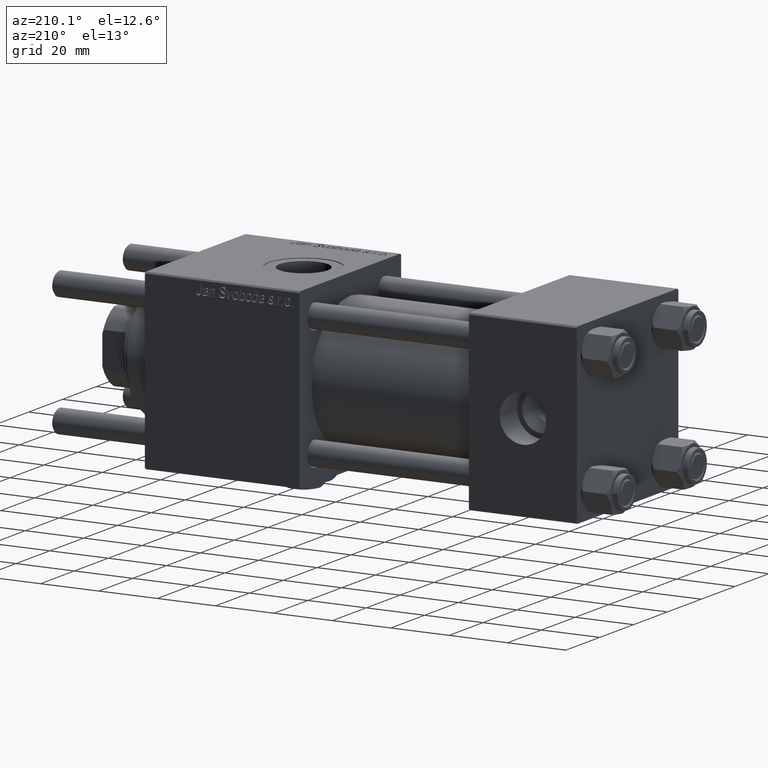
[diagram: clean part render]
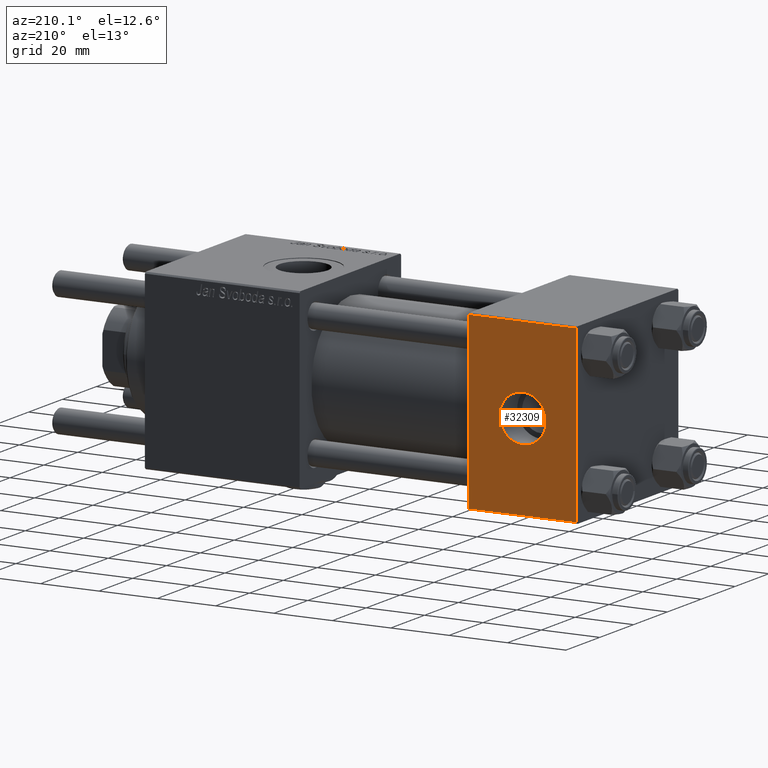
[diagram: same view with one face highlighted and labeled with its STEP entity id]
A machine part, auxiliary view. The second image highlights one B-rep face of the part: STEP entity #32309.
In plain terms, the highlighted planar face has unit normal (0, 1, 0).
Its self-contained STEP definition (entity closure, byte-faithful):
#1360 = EDGE_CURVE ( 'NONE', #17130, #56849, #24580, .T. ) ;
#2217 = CARTESIAN_POINT ( 'NONE',  ( 37.00000000000000000, 29.99999999999999289, -29.50000000000000000 ) ) ;
#3434 = VERTEX_POINT ( 'NONE', #12676 ) ;
#3611 = DIRECTION ( 'NONE',  ( -0.000000000000000000, 1.000000000000000000, 0.000000000000000000 ) ) ;
#3901 = CARTESIAN_POINT ( 'NONE',  ( 37.00000000000000000, 29.99999999999999289, 30.00000000000000000 ) ) ;
#5620 = AXIS2_PLACEMENT_3D ( 'NONE', #3901, #3611, #7777 ) ;
#6468 = CARTESIAN_POINT ( 'NONE',  ( 18.50000000000000000, 29.99999999999999289, 0.000000000000000000 ) ) ;
#7267 = DIRECTION ( 'NONE',  ( 0.000000000000000000, 1.000000000000000000, 0.000000000000000000 ) ) ;
#7273 = LINE ( 'NONE', #2217, #49965 ) ;
#7777 = DIRECTION ( 'NONE',  ( 0.000000000000000000, -0.000000000000000000, 1.000000000000000000 ) ) ;
#7893 = EDGE_CURVE ( 'NONE', #24672, #13046, #33667, .T. ) ;
#10013 = EDGE_CURVE ( 'NONE', #13046, #56849, #7273, .T. ) ;
#11060 = CARTESIAN_POINT ( 'NONE',  ( 37.00000000000000000, 29.99999999999999289, 30.00000000000000000 ) ) ;
#12458 = ORIENTED_EDGE ( 'NONE', *, *, #49278, .F. ) ;
#12676 = CARTESIAN_POINT ( 'NONE',  ( 18.50000000000000000, 29.99999999999999289, -8.000000000000001776 ) ) ;
#13046 = VERTEX_POINT ( 'NONE', #20766 ) ;
#14012 = CARTESIAN_POINT ( 'NONE',  ( 37.00000000000000000, 29.99999999999999289, 29.50000000000000000 ) ) ;
#14279 = AXIS2_PLACEMENT_3D ( 'NONE', #30469, #7267, #38218 ) ;
#17130 = VERTEX_POINT ( 'NONE', #27469 ) ;
#18965 = CIRCLE ( 'NONE', #49396, 8.000000000000001776 ) ;
#19747 = ORIENTED_EDGE ( 'NONE', *, *, #1360, .F. ) ;
#20161 = DIRECTION ( 'NONE',  ( 0.000000000000000000, 0.000000000000000000, 1.000000000000000000 ) ) ;
#20766 = CARTESIAN_POINT ( 'NONE',  ( 37.00000000000000000, 29.99999999999999289, -29.50000000000000000 ) ) ;
#22370 = ORIENTED_EDGE ( 'NONE', *, *, #10013, .T. ) ;
#22494 = LINE ( 'NONE', #56024, #23090 ) ;
#23090 = VECTOR ( 'NONE', #28629, 1000.000000000000000 ) ;
#24290 = DIRECTION ( 'NONE',  ( 0.000000000000000000, 0.000000000000000000, -1.000000000000000000 ) ) ;
#24580 = LINE ( 'NONE', #42130, #56253 ) ;
#24628 = DIRECTION ( 'NONE',  ( 0.000000000000000000, 1.000000000000000000, 0.000000000000000000 ) ) ;
#24672 = VERTEX_POINT ( 'NONE', #14012 ) ;
#24740 = EDGE_LOOP ( 'NONE', ( #26848, #22370, #19747, #52997 ) ) ;
#26848 = ORIENTED_EDGE ( 'NONE', *, *, #7893, .T. ) ;
#27469 = CARTESIAN_POINT ( 'NONE',  ( 0.000000000000000000, 29.99999999999999289, 29.50000000000000000 ) ) ;
#28629 = DIRECTION ( 'NONE',  ( 1.000000000000000000, 0.000000000000000000, 0.000000000000000000 ) ) ;
#30469 = CARTESIAN_POINT ( 'NONE',  ( 18.50000000000000000, 29.99999999999999289, 0.000000000000000000 ) ) ;
#32309 = ADVANCED_FACE ( 'NONE', ( #44962, #35159 ), #53906, .T. ) ;
#33667 = LINE ( 'NONE', #11060, #37408 ) ;
#35159 = FACE_OUTER_BOUND ( 'NONE', #24740, .T. ) ;
#35377 = CARTESIAN_POINT ( 'NONE',  ( 0.000000000000000000, 29.99999999999999289, -29.50000000000000000 ) ) ;
#37408 = VECTOR ( 'NONE', #45887, 1000.000000000000000 ) ;
#38218 = DIRECTION ( 'NONE',  ( 0.000000000000000000, 0.000000000000000000, 1.000000000000000000 ) ) ;
#38818 = DIRECTION ( 'NONE',  ( -1.000000000000000000, 0.000000000000000000, 0.000000000000000000 ) ) ;
#42130 = CARTESIAN_POINT ( 'NONE',  ( 0.000000000000000000, 29.99999999999999289, 30.00000000000000000 ) ) ;
#44962 = FACE_BOUND ( 'NONE', #54304, .T. ) ;
#45887 = DIRECTION ( 'NONE',  ( 0.000000000000000000, 0.000000000000000000, -1.000000000000000000 ) ) ;
#47310 = EDGE_CURVE ( 'NONE', #56021, #3434, #18965, .T. ) ;
#49278 = EDGE_CURVE ( 'NONE', #3434, #56021, #57066, .T. ) ;
#49396 = AXIS2_PLACEMENT_3D ( 'NONE', #6468, #24628, #20161 ) ;
#49965 = VECTOR ( 'NONE', #38818, 1000.000000000000000 ) ;
#52280 = ORIENTED_EDGE ( 'NONE', *, *, #47310, .F. ) ;
#52997 = ORIENTED_EDGE ( 'NONE', *, *, #57371, .T. ) ;
#53646 = CARTESIAN_POINT ( 'NONE',  ( 18.50000000000000000, 29.99999999999999289, 8.000000000000001776 ) ) ;
#53906 = PLANE ( 'NONE',  #5620 ) ;
#54304 = EDGE_LOOP ( 'NONE', ( #52280, #12458 ) ) ;
#56021 = VERTEX_POINT ( 'NONE', #53646 ) ;
#56024 = CARTESIAN_POINT ( 'NONE',  ( 37.00000000000000000, 29.99999999999999289, 29.50000000000000000 ) ) ;
#56253 = VECTOR ( 'NONE', #24290, 1000.000000000000000 ) ;
#56849 = VERTEX_POINT ( 'NONE', #35377 ) ;
#57066 = CIRCLE ( 'NONE', #14279, 8.000000000000001776 ) ;
#57371 = EDGE_CURVE ( 'NONE', #17130, #24672, #22494, .T. ) ;